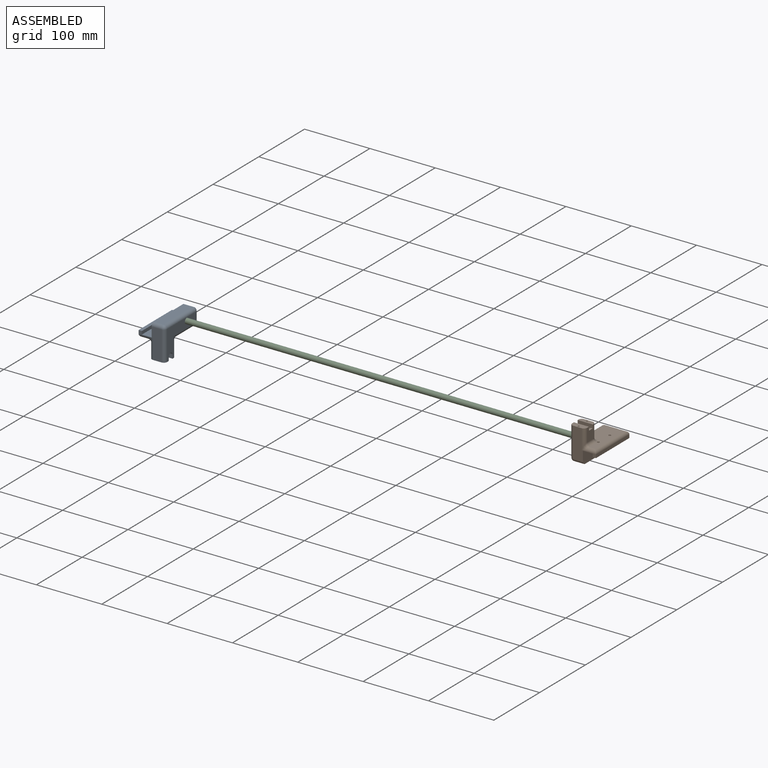
[diagram: assembled view]
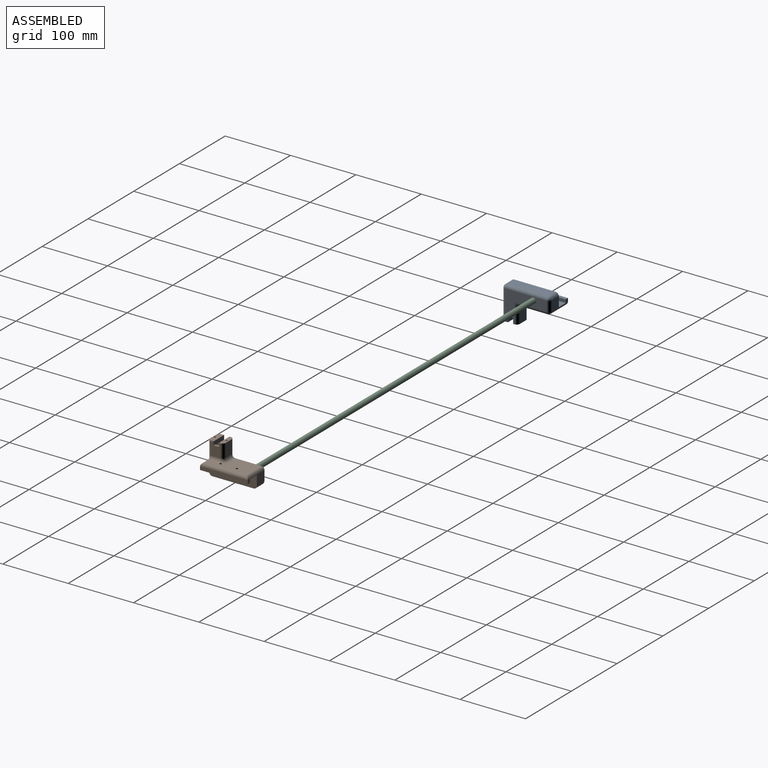
[diagram: assembled view, second angle]
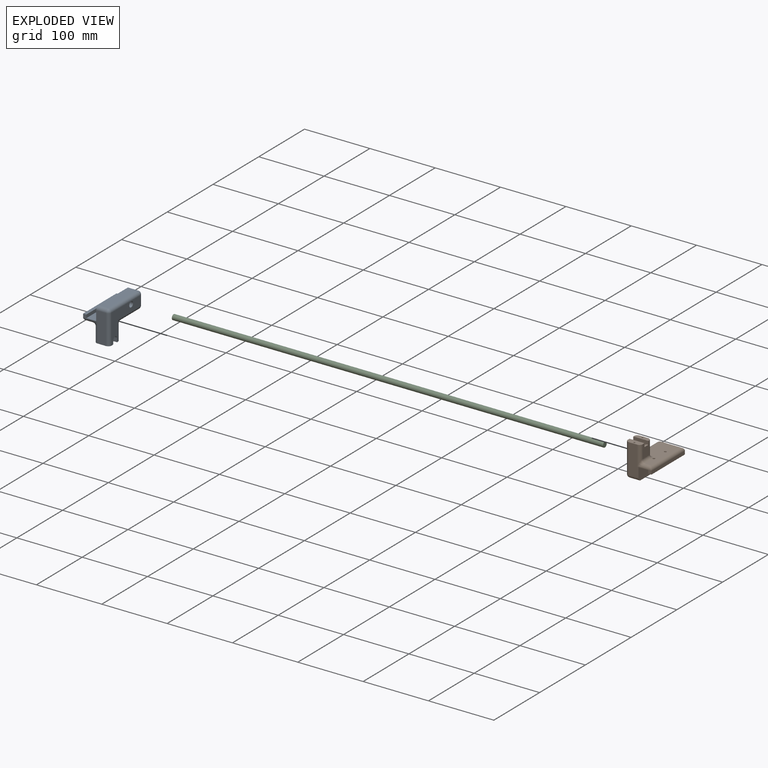
[diagram: exploded view]
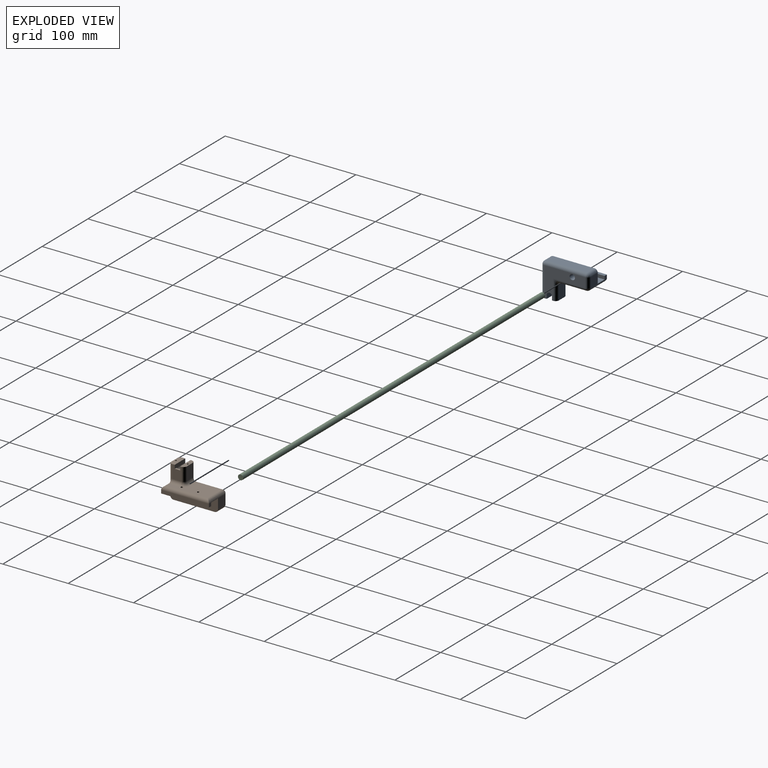
[diagram: exploded view, second angle]
ASSEMBLY  parts=3 mates=2
PART A: 52 faces, bbox 40x73x50.5 mm
  f0: bspline ~5x4.23mm, area 7.3mm2, adj f1,f49,f50,f51
  f1: bspline ~5.12x5mm, area 7.1mm2, adj f0,f2,f49,f51
  f2: torus R=10mm, axis (0,0,1), area 12.5mm2, adj f1,f3,f48,f51
  f3: cylinder r=5mm len=14mm, axis (0,1,0), area 110mm2, adj f2,f4,f47,f48
  f4: bspline ~10x10mm, area 26.4mm2, adj f3,f5,f46
  f5: cylinder r=5mm len=30.5mm, axis (0,0,1), area 200.3mm2, adj f4,f6,f45,f47
  f6: plane 23x8.9mm, normal (0,0,1), area 189.1mm2, adj f5,f7,f41,f42,f43,f45,f47
  f7: cylinder r=5mm len=45.5mm, axis (0,0,1), area 357.4mm2, adj f6,f8,f41,f45
  f8: sphere r=5mm, area 39.3mm2, adj f7,f9,f40
  f9: cylinder r=5mm len=63mm, axis (0,1,0), area 494.8mm2, adj f8,f10,f39,f41
  f10: plane 63x15mm, normal (0,0,-1), area 945mm2, adj f9,f11,f38,f40
  f11: plane 73x20mm, normal (1,0,0), area 1396.5mm2, adj f10,f12,f36,f37,f38,f40,f45
  f12: plane 73x15mm, normal (0,0,-1), area 1076.8mm2, adj f11,f13,f19,f35,f46,f49
  f13: plane 73x5mm, normal (-1,0,0), area 365mm2, adj f12,f14,f17,f18
  f14: plane 5x5mm, normal (0,-1,0), area 25mm2, adj f13,f15,f17,f46
  f15: plane 73x5mm, normal (1,0,0), area 365mm2, adj f14,f16,f17,f18
  f16: cylinder r=5mm len=73mm, axis (0,1,0), area 534.1mm2, adj f15,f19,f46,f48
  f17: plane 73x5mm, normal (0,0,-1), area 365mm2, adj f13,f14,f15,f18
  f18: plane 5x5mm, normal (0,1,0), area 25mm2, adj f13,f15,f17,f19
  f19: cylinder r=5mm len=35mm, axis (-1,0,0), area 255.3mm2, adj f12,f16,f18,f20,f36,f48
  f20: sphere r=5mm, area 39.3mm2, adj f19,f21,f34
  f21: cylinder r=5mm len=49mm, axis (0,1,0), area 345.6mm2, adj f20,f22,f33,f41,f48
  f22: bspline ~6.95x6.95mm, area 12.8mm2, adj f21,f23,f32
  f23: cylinder r=5mm len=13mm, axis (-1,0,0), area 102.1mm2, adj f22,f24,f48,f50
  f24: plane 20.5x13mm, normal (0,1,0), area 266.5mm2, adj f23,f25,f32,f51
  f25: plane 23x6.9mm, normal (0,0,1), area 143.1mm2, adj f24,f26,f30,f32,f41,f47,f51
  f26: plane 23x5.5mm, normal (0,-1,0), area 126.5mm2, adj f25,f27,f29,f41,f47
  f27: plane 8.2x3mm, normal (0,0,1), area 24.6mm2, adj f26,f28,f42,f47
  f28: plane 8.2x4.1mm, normal (-1,0,0), area 26.4mm2, adj f27,f29
  f29: cylinder r=4.1mm len=20mm, axis (1,0,0), area 257.6mm2, adj f26,f28,f41,f42
  f30: cylinder r=1.25mm len=13.5mm, axis (0,0,1), area 106mm2, adj f25,f31
  f31: cone r=0mm half-angle=59deg, axis (0,0,1), area 5.7mm2, adj f30
  f32: cylinder r=5mm len=30.5mm, axis (0,0,1), area 200.3mm2, adj f22,f24,f25,f33,f41
  f33: bspline ~7.3x7.3mm, area 6.3mm2, adj f21,f32
  f34: cylinder r=5mm len=15mm, axis (0,0,-1), area 117.8mm2, adj f20,f36,f39,f41
  f35: cylinder r=1.7mm len=5mm, axis (0,0,-1), area 53.4mm2, adj f12,f48
  f36: plane 15x15mm, normal (0,1,0), area 225mm2, adj f11,f19,f34,f38
  f37: cylinder r=4.1mm len=20mm, axis (1,0,0), area 515.2mm2, adj f11,f41
  f38: cylinder r=5mm len=15mm, axis (1,0,0), area 117.8mm2, adj f10,f11,f36,f39
  f39: sphere r=5mm, area 39.3mm2, adj f9,f34,f38
  f40: cylinder r=5mm len=15mm, axis (-1,0,0), area 117.8mm2, adj f8,f10,f11,f45
  f41: plane 63x45.5mm, normal (-1,0,0), area 1247.7mm2, adj f6,f7,f9,f21,f25,f26,f29,f32
  f42: plane 23x5.5mm, normal (0,1,0), area 126.5mm2, adj f6,f27,f29,f41,f47
  f43: cylinder r=1.25mm len=13.5mm, axis (0,0,1), area 106mm2, adj f6,f44
  f44: cone r=0mm half-angle=59deg, axis (0,0,1), area 5.7mm2, adj f43
  f45: plane 45.5x15mm, normal (0,-1,0), area 621.5mm2, adj f5,f6,f7,f11,f40,f46
  f46: cylinder r=5mm len=22mm, axis (1,0,0), area 108.5mm2, adj f4,f12,f14,f16,f45,f48
  f47: plane 20.5x14mm, normal (1,0,0), area 241.9mm2, adj f3,f5,f6,f25,f26,f27,f42,f51
  f48: plane 63x30mm, normal (0,0,1), area 1344.6mm2, adj f2,f3,f16,f19,f21,f23,f35,f46
  f49: cylinder r=1.7mm len=5mm, axis (0,0,-1), area 53.4mm2, adj f0,f1,f12,f48
  f50: torus R=10mm, axis (0,0,1), area 53.9mm2, adj f0,f23,f48,f51
  f51: cylinder r=5mm len=20.7mm, axis (0,0,-1), area 161.2mm2, adj f0,f1,f2,f24,f25,f47,f50
PART B: same geometry as A
PART C: 3 faces, bbox 8x660x8 mm
  f0: cylinder r=4mm len=660mm, axis (0,1,0), area 16587.6mm2, adj f1,f2
  f1: plane 8x8mm, normal (0,-1,0), area 50.3mm2, adj f0
  f2: plane 8x8mm, normal (0,1,0), area 50.3mm2, adj f0
PLACE A rot(axis=(0,1,0),180deg) t=(-1331.79,59.52,-12.61)mm
PLACE B t=(-711.79,59.52,-32.61)mm
PLACE C rot(axis=(-0.58,-0.58,-0.58),120deg) t=(-1021.79,59.52,-22.61)mm
MATE revolute C.f0 <-> B.f37  axis (1,0,0) through (-691.79,59.52,-22.61)mm
MATE revolute A.f37 <-> C.f0  axis (-1,0,0) through (-1351.79,59.52,-22.61)mm
